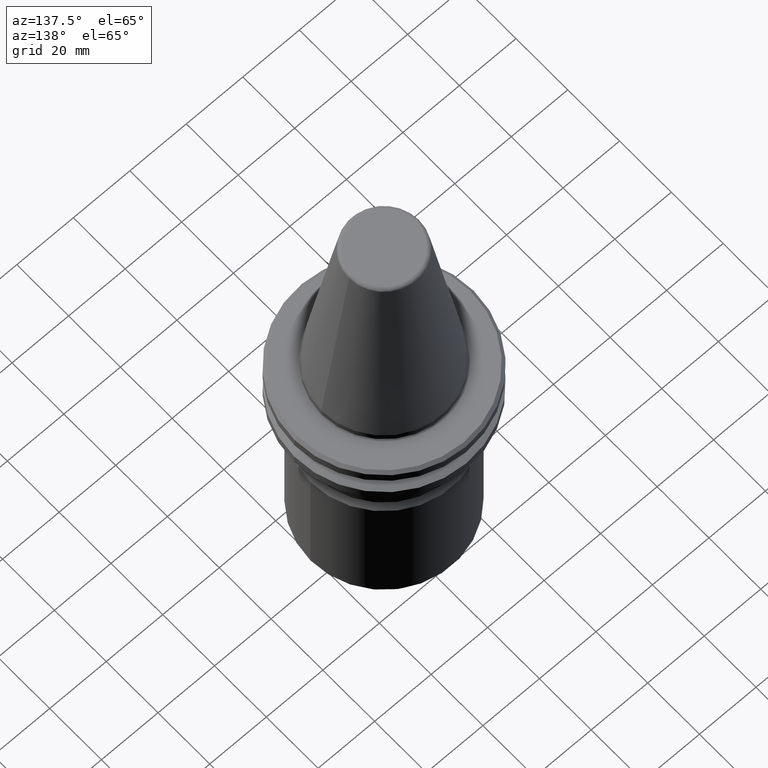
[diagram: clean part render]
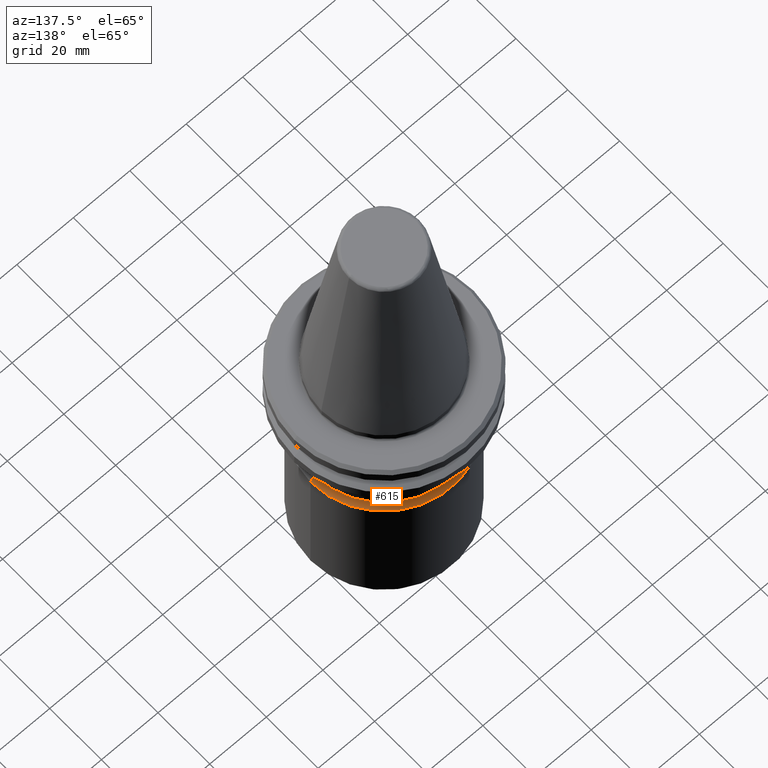
[diagram: same view with one face highlighted and labeled with its STEP entity id]
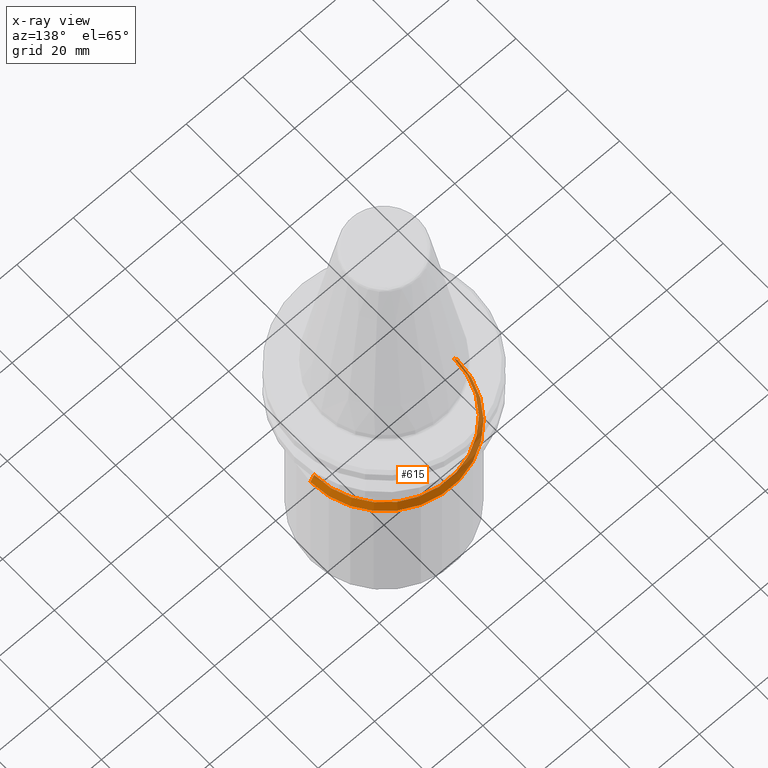
[diagram: x-ray of the same camera — body ghosted, the highlighted face saturated]
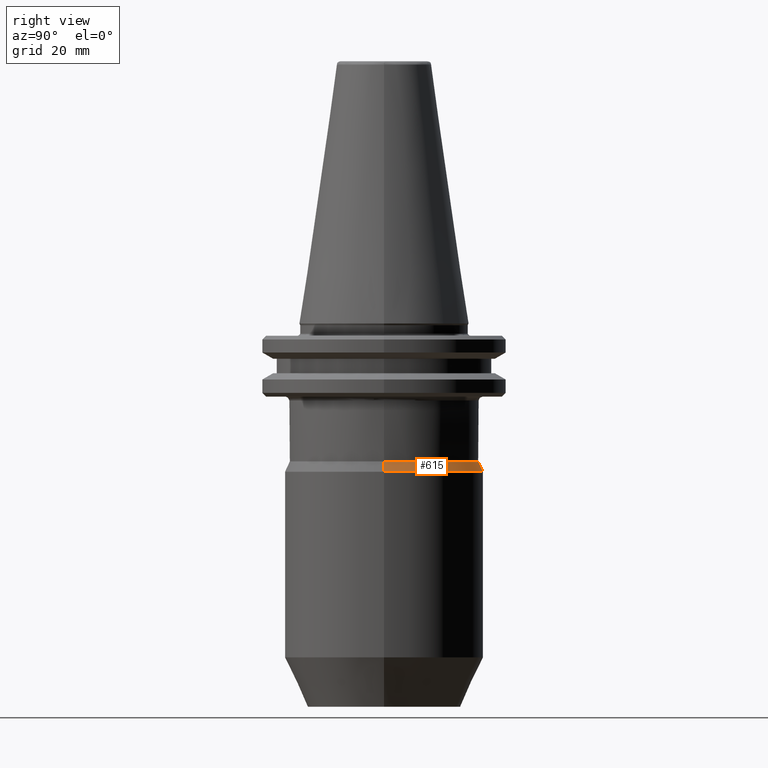
[diagram: same view with one face highlighted and labeled with its STEP entity id]
A machine part, auxiliary view. The second image highlights one B-rep face of the part: STEP entity #615.
The next image is the same camera in x-ray: the body ghosted, the highlighted face saturated — about 31% of this face is hidden behind the body in this view.
A second angle (right view) of the same face is appended — the face is thin or edge-on in the first view.
In plain terms, the highlighted conical surface has half-angle 25 deg.
Its self-contained STEP definition (entity closure, byte-faithful):
#9 = VERTEX_POINT ( 'NONE', #713 ) ;
#42 = EDGE_CURVE ( 'NONE', #9, #941, #1267, .T. ) ;
#56 = CIRCLE ( 'NONE', #1112, 26.00000000000000700 ) ;
#89 = DIRECTION ( 'NONE',  ( -1.000000000000000000, 0.0000000000000000000, 0.0000000000000000000 ) ) ;
#173 = CARTESIAN_POINT ( 'NONE',  ( -26.00000000000000700, 3.184081677783119000E-015, -38.67999999999999300 ) ) ;
#183 = VERTEX_POINT ( 'NONE', #173 ) ;
#314 = CARTESIAN_POINT ( 'NONE',  ( 0.0000000000000000000, 0.0000000000000000000, -38.67999999999999300 ) ) ;
#318 = DIRECTION ( 'NONE',  ( 0.4226182617407022700, 5.175581015019693900E-017, -0.9063077870366486000 ) ) ;
#349 = VECTOR ( 'NONE', #488, 1000.000000000000200 ) ;
#354 = CARTESIAN_POINT ( 'NONE',  ( 26.00000000000000700, 0.0000000000000000000, -38.67999999999999300 ) ) ;
#386 = AXIS2_PLACEMENT_3D ( 'NONE', #443, #1338, #579 ) ;
#443 = CARTESIAN_POINT ( 'NONE',  ( 0.0000000000000000000, 0.0000000000000000000, -35.99936634936307200 ) ) ;
#459 = CARTESIAN_POINT ( 'NONE',  ( -26.00000000000000000, 0.0000000000000000000, -38.67999999999999300 ) ) ;
#466 = FACE_OUTER_BOUND ( 'NONE', #849, .T. ) ;
#482 = ORIENTED_EDGE ( 'NONE', *, *, #891, .F. ) ;
#488 = DIRECTION ( 'NONE',  ( -0.4226182617407022700, 0.0000000000000000000, -0.9063077870366486000 ) ) ;
#565 = CARTESIAN_POINT ( 'NONE',  ( 26.00000000000000000, 3.184081677783118200E-015, -38.67999999999999300 ) ) ;
#579 = DIRECTION ( 'NONE',  ( -1.000000000000000000, 0.0000000000000000000, 0.0000000000000000000 ) ) ;
#593 = AXIS2_PLACEMENT_3D ( 'NONE', #314, #1085, #89 ) ;
#615 = ADVANCED_FACE ( 'NONE', ( #466 ), #1527, .T. ) ;
#713 = CARTESIAN_POINT ( 'NONE',  ( 24.75000000000000000, 3.107541252836408700E-015, -35.99936634936307200 ) ) ;
#770 = EDGE_CURVE ( 'NONE', #183, #941, #56, .T. ) ;
#782 = VERTEX_POINT ( 'NONE', #1257 ) ;
#849 = EDGE_LOOP ( 'NONE', ( #1400, #1606, #896, #482 ) ) ;
#891 = EDGE_CURVE ( 'NONE', #782, #183, #991, .T. ) ;
#896 = ORIENTED_EDGE ( 'NONE', *, *, #770, .F. ) ;
#941 = VERTEX_POINT ( 'NONE', #354 ) ;
#966 = VECTOR ( 'NONE', #318, 1000.000000000000200 ) ;
#991 = LINE ( 'NONE', #459, #349 ) ;
#1085 = DIRECTION ( 'NONE',  ( 0.0000000000000000000, 0.0000000000000000000, -1.000000000000000000 ) ) ;
#1112 = AXIS2_PLACEMENT_3D ( 'NONE', #1220, #1117, #1349 ) ;
#1117 = DIRECTION ( 'NONE',  ( -0.0000000000000000000, -0.0000000000000000000, -1.000000000000000000 ) ) ;
#1151 = EDGE_CURVE ( 'NONE', #782, #9, #1594, .T. ) ;
#1220 = CARTESIAN_POINT ( 'NONE',  ( 0.0000000000000000000, 0.0000000000000000000, -38.67999999999999300 ) ) ;
#1257 = CARTESIAN_POINT ( 'NONE',  ( -24.75000000000000000, 0.0000000000000000000, -35.99936634936307200 ) ) ;
#1267 = LINE ( 'NONE', #565, #966 ) ;
#1338 = DIRECTION ( 'NONE',  ( 0.0000000000000000000, 0.0000000000000000000, -1.000000000000000000 ) ) ;
#1349 = DIRECTION ( 'NONE',  ( 1.000000000000000000, 0.0000000000000000000, 0.0000000000000000000 ) ) ;
#1400 = ORIENTED_EDGE ( 'NONE', *, *, #1151, .T. ) ;
#1527 = CONICAL_SURFACE ( 'NONE', #593, 26.00000000000000000, 0.4363323129985855500 ) ;
#1594 = CIRCLE ( 'NONE', #386, 24.75000000000000000 ) ;
#1606 = ORIENTED_EDGE ( 'NONE', *, *, #42, .T. ) ;